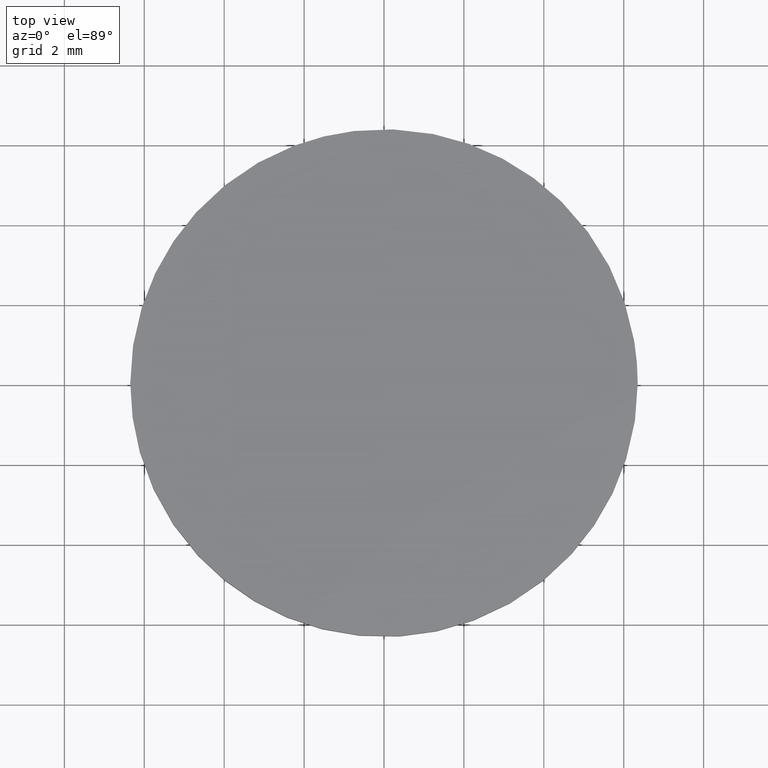
[diagram: clean part render]
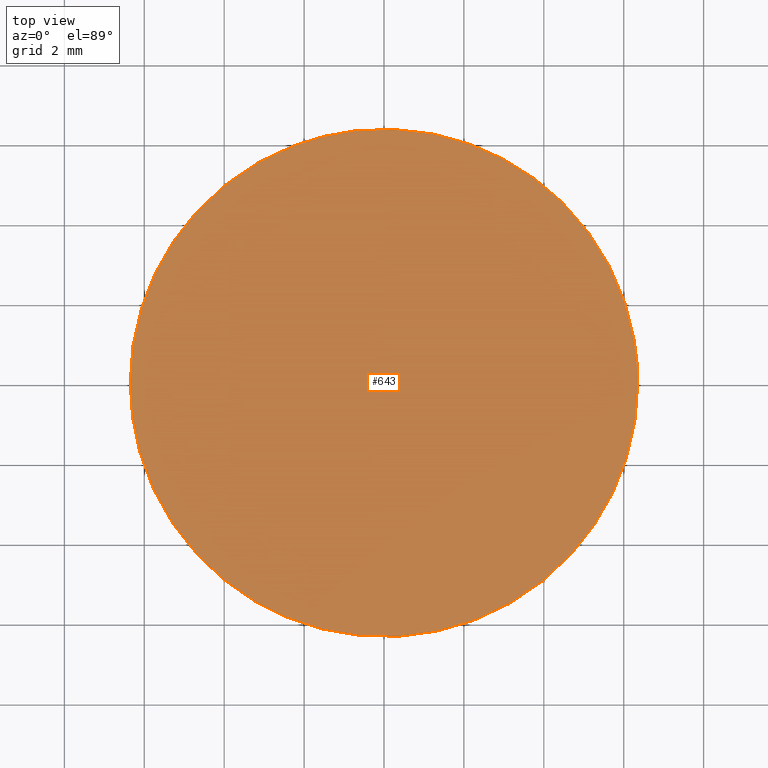
[diagram: same view with one face highlighted and labeled with its STEP entity id]
A machine part, top view. The second image highlights one B-rep face of the part: STEP entity #643.
In plain terms, the highlighted face is a freeform B-spline surface patch.
Its self-contained STEP definition (entity closure, byte-faithful):
#301=CARTESIAN_POINT('',(-0.749513424211019,6.305610963809258,3.600000000000000));
#302=VERTEX_POINT('',#301);
#308=CARTESIAN_POINT('',(6.350000000000000,0.0,3.600000000000000));
#309=VERTEX_POINT('',#308);
#310=CARTESIAN_POINT('',(-0.749513424211019,6.305610963809258,3.600000000000000));
#311=CARTESIAN_POINT('',(-0.376071155896838,6.350000000000000,3.600000000000000));
#312=CARTESIAN_POINT('',(0.0,6.350000000000000,3.600000000000000));
#313=CARTESIAN_POINT('',(6.350000000000000,6.350000000000000,3.600000000000000));
#314=CARTESIAN_POINT('',(6.350000000000000,0.0,3.600000000000000));
#322=(BOUNDED_CURVE()B_SPLINE_CURVE(2,(#310,#311,#312,#313,#314),.UNSPECIFIED.,.F.,.U.)B_SPLINE_CURVE_WITH_KNOTS((3,2,3),(0.229562579808786,0.250000000000000,0.500000000000000),.UNSPECIFIED.)CURVE()GEOMETRIC_REPRESENTATION_ITEM()RATIONAL_B_SPLINE_CURVE((0.956026962526900,0.976056072863809,1.0,0.707106781186547,1.0))REPRESENTATION_ITEM(''));
#323=EDGE_CURVE('',#302,#309,#322,.T.);
#325=CARTESIAN_POINT('',(0.387655985912206,-6.338156106990533,3.600000000000000));
#326=VERTEX_POINT('',#325);
#327=CARTESIAN_POINT('',(6.350000000000000,0.0,3.600000000000000));
#328=CARTESIAN_POINT('',(6.349999999999999,-5.973485640042394,3.600000000000001));
#329=CARTESIAN_POINT('',(0.387655985912206,-6.338156106990533,3.600000000000000));
#337=(BOUNDED_CURVE()B_SPLINE_CURVE(2,(#327,#328,#329),.UNSPECIFIED.,.F.,.U.)B_SPLINE_CURVE_WITH_KNOTS((3,3),(0.500000000000000,0.739333023226263),.UNSPECIFIED.)CURVE()GEOMETRIC_REPRESENTATION_ITEM()RATIONAL_B_SPLINE_CURVE((1.0,0.719603921835620,0.976072172374189))REPRESENTATION_ITEM(''));
#338=EDGE_CURVE('',#309,#326,#337,.T.);
#412=CARTESIAN_POINT('',(-6.350000000000000,0.0,3.600000000000000));
#413=VERTEX_POINT('',#412);
#414=CARTESIAN_POINT('',(0.387655985912206,-6.338156106990533,3.600000000000000));
#415=CARTESIAN_POINT('',(0.194008923738444,-6.350000000000000,3.600000000000000));
#416=CARTESIAN_POINT('',(0.0,-6.350000000000000,3.600000000000000));
#417=CARTESIAN_POINT('',(-6.350000000000000,-6.350000000000000,3.600000000000000));
#418=CARTESIAN_POINT('',(-6.350000000000000,0.0,3.600000000000000));
#426=(BOUNDED_CURVE()B_SPLINE_CURVE(2,(#414,#415,#416,#417,#418),.UNSPECIFIED.,.F.,.U.)B_SPLINE_CURVE_WITH_KNOTS((3,2,3),(0.739333023226263,0.750000000000000,1.0),.UNSPECIFIED.)CURVE()GEOMETRIC_REPRESENTATION_ITEM()RATIONAL_B_SPLINE_CURVE((0.976072172374189,0.987502859350927,1.0,0.707106781186547,1.0))REPRESENTATION_ITEM(''));
#427=EDGE_CURVE('',#326,#413,#426,.T.);
#429=CARTESIAN_POINT('',(-6.350000000000000,0.0,3.600000000000000));
#430=CARTESIAN_POINT('',(-6.350000000000001,5.639911811934584,3.600000000000001));
#431=CARTESIAN_POINT('',(-0.749513424211019,6.305610963809258,3.600000000000000));
#439=(BOUNDED_CURVE()B_SPLINE_CURVE(2,(#429,#430,#431),.UNSPECIFIED.,.F.,.U.)B_SPLINE_CURVE_WITH_KNOTS((3,3),(0.0,0.229562579808786),.UNSPECIFIED.)CURVE()GEOMETRIC_REPRESENTATION_ITEM()RATIONAL_B_SPLINE_CURVE((1.0,0.731050708322738,0.956026962526900))REPRESENTATION_ITEM(''));
#440=EDGE_CURVE('',#413,#302,#439,.T.);
#632=CARTESIAN_POINT('',(-6.984364856166421,-6.984210541247651,3.600000000000000));
#633=CARTESIAN_POINT('',(6.984365310353813,-6.984210541247651,3.600000000000000));
#634=CARTESIAN_POINT('',(-6.984364856166421,6.984249487816618,3.600000000000000));
#635=CARTESIAN_POINT('',(6.984365310353813,6.984249487816618,3.600000000000000));
#636=B_SPLINE_SURFACE_WITH_KNOTS('',1,1,((#632,#634),(#633,#635)),.UNSPECIFIED.,.F.,.F.,.U.,(2,2),(2,2),(0.0,13.968730166520240),(0.0,13.968460029064270),.UNSPECIFIED.);
#637=ORIENTED_EDGE('',*,*,#427,.F.);
#638=ORIENTED_EDGE('',*,*,#338,.F.);
#639=ORIENTED_EDGE('',*,*,#323,.F.);
#640=ORIENTED_EDGE('',*,*,#440,.F.);
#641=EDGE_LOOP('',(#637,#638,#639,#640));
#642=FACE_OUTER_BOUND('',#641,.T.);
#643=ADVANCED_FACE('',(#642),#636,.T.);